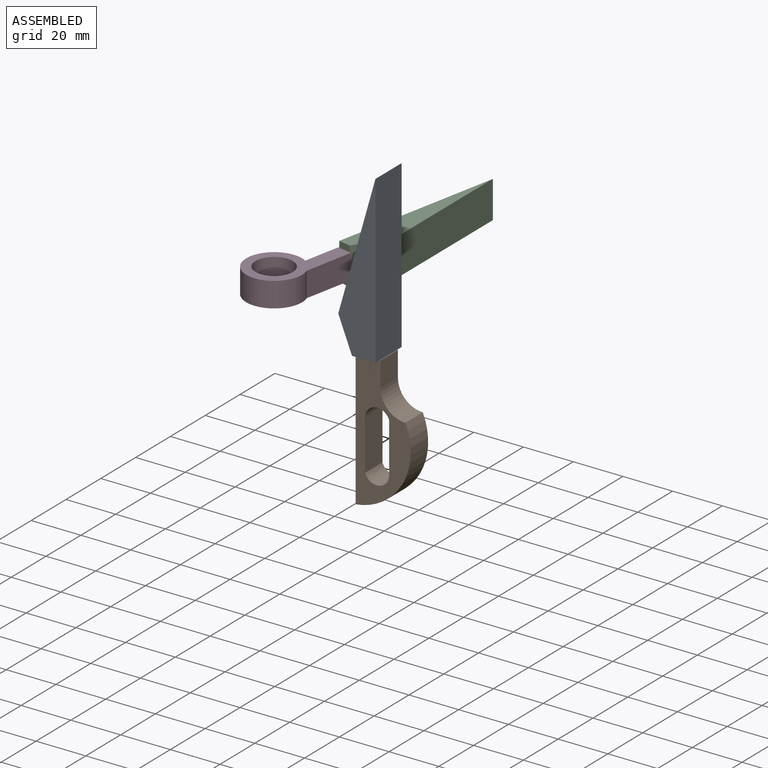
[diagram: assembled view]
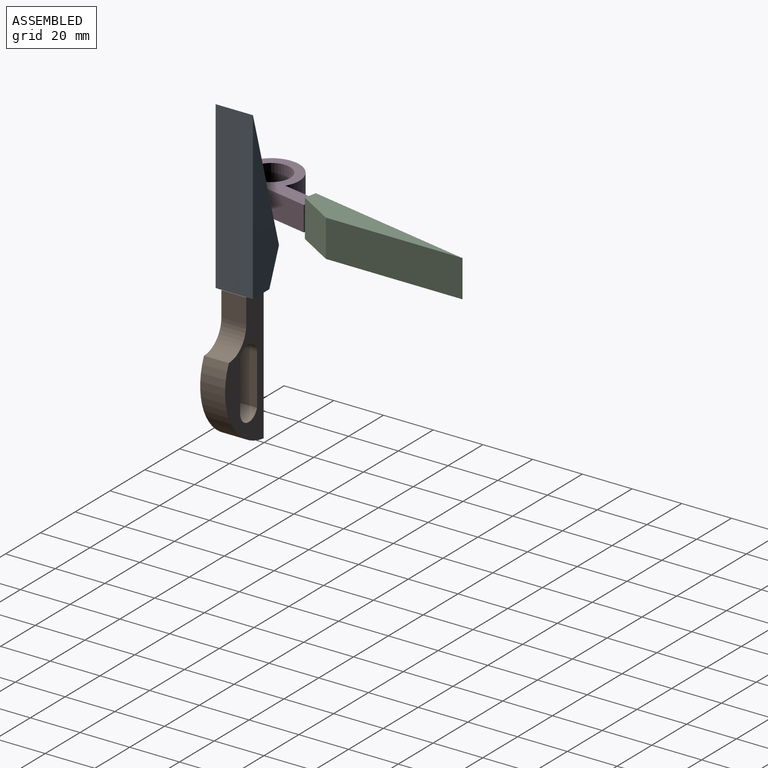
[diagram: assembled view, second angle]
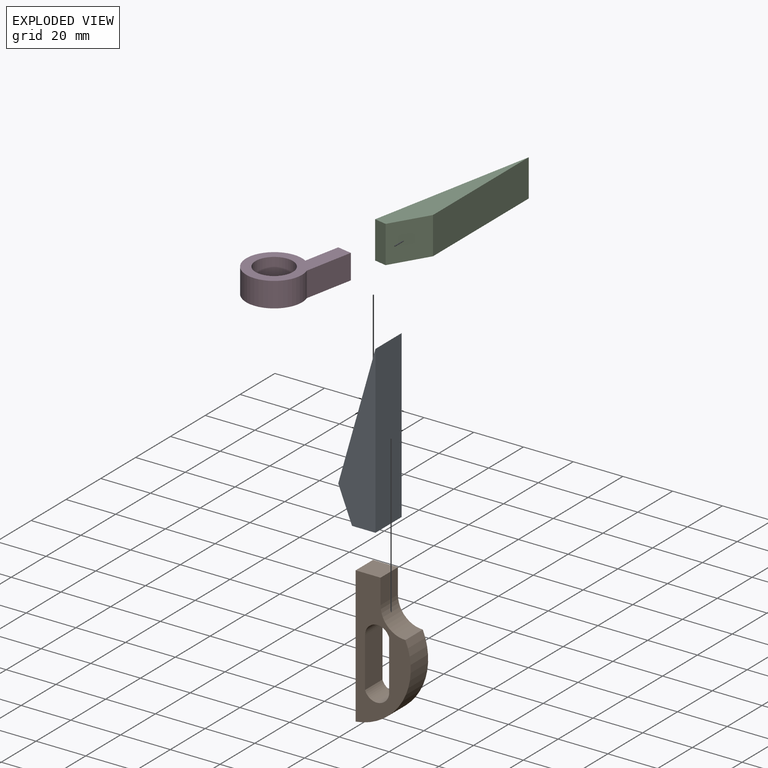
[diagram: exploded view]
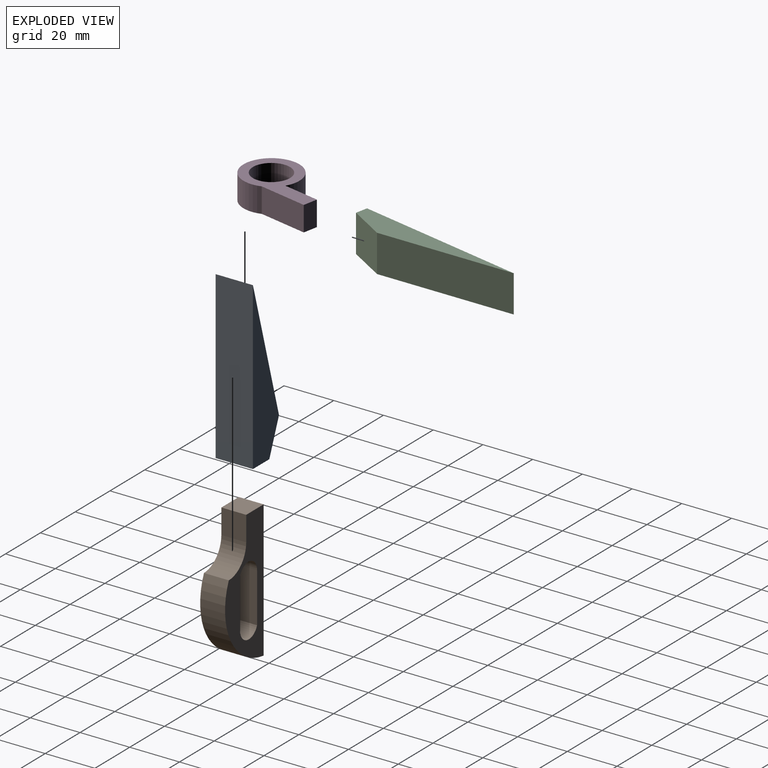
[diagram: exploded view, second angle]
ASSEMBLY  parts=4 mates=2
PART A: 6 faces, bbox 15x15x66.9 mm
  f0: plane 15x13.94mm, normal (-0.93,0,-0.37), area 225mm2, adj f1,f3,f4,f5
  f1: plane 15x9.43mm, normal (0,0,-1), area 141.4mm2, adj f0,f2,f4,f5
  f2: plane 66.86x15mm, normal (1,0,0), area 1002.9mm2, adj f1,f3,f4,f5
  f3: plane 52.92x15mm, normal (-0.96,0,0.27), area 825mm2, adj f0,f2,f4,f5
  f4: plane 66.86x14.97mm, normal (0,-1,0), area 566.2mm2, adj f0,f1,f2,f3
  f5: plane 66.86x14.97mm, normal (0,1,0), area 566.2mm2, adj f0,f1,f2,f3
PART B: 11 faces, bbox 22.2x10x55 mm
  f0: plane 55x22.16mm, normal (0,-1,0), area 603.6mm2, adj f2,f3,f4,f5,f6,f7,f8,f9
  f1: plane 55x22.16mm, normal (0,1,0), area 603.6mm2, adj f2,f3,f4,f5,f6,f7,f8,f9
  f2: plane 10x10mm, normal (0,0,1), area 100mm2, adj f0,f1,f3,f6
  f3: plane 55x10mm, normal (-1,0,0), area 550mm2, adj f0,f1,f2,f4
  f4: cylinder r=25mm len=35mm, axis (0,1,0), area 468.9mm2, adj f0,f1,f3,f5
  f5: cylinder r=10mm len=10mm, axis (0,1,0), area 157.1mm2, adj f0,f1,f4,f6
  f6: plane 10x10mm, normal (1,0,0), area 100mm2, adj f0,f1,f2,f5
  f7: plane 20x10mm, normal (-1,0,0), area 200mm2, adj f0,f1,f8,f10
  f8: cylinder r=5mm len=10mm, axis (0,-1,0), area 140mm2, adj f0,f1,f7,f9
  f9: plane 20x10mm, normal (1,0,0), area 200mm2, adj f0,f1,f8,f10
  f10: cylinder r=5mm len=10mm, axis (0,-1,0), area 140mm2, adj f0,f1,f7,f9
PART C: 6 faces, bbox 10.8x15x70 mm
  f0: plane 15x5mm, normal (0,0,-1), area 75mm2, adj f1,f3,f4,f5
  f1: plane 16.07x15mm, normal (0.94,0,-0.34), area 256.1mm2, adj f0,f2,f4,f5
  f2: plane 53.93x15mm, normal (0.98,0,0.2), area 825mm2, adj f1,f3,f4,f5
  f3: plane 70x15mm, normal (-1,0,0), area 1050mm2, adj f0,f2,f4,f5
  f4: plane 70x10.78mm, normal (0,-1,0), area 417.5mm2, adj f0,f1,f2,f3
  f5: plane 70x10.78mm, normal (0,1,0), area 417.5mm2, adj f0,f1,f2,f3
PART D: 7 faces, bbox 22.5x10x36.9 mm
  f0: plane 10x6mm, normal (0,0,1), area 60mm2, adj f1,f3,f4,f5
  f1: plane 15x10mm, normal (-1,0,0), area 150mm2, adj f0,f2,f4,f5
  f2: cylinder r=11.25mm len=22.5mm, axis (0,1,0), area 627.1mm2, adj f1,f3,f4,f5
  f3: plane 20x10mm, normal (1,0,0), area 200mm2, adj f0,f2,f4,f5
  f4: plane 36.86x22.5mm, normal (0,-1,0), area 322.2mm2, adj f0,f1,f2,f3,f6
  f5: plane 36.86x22.5mm, normal (0,1,0), area 322.2mm2, adj f0,f1,f2,f3,f6
  f6: cylinder r=7.5mm len=15mm, axis (0,-1,0), area 471.2mm2, adj f4,f5
PLACE A t=(-59,0.86,-5.21)mm
PLACE B t=(-59.28,-1.64,-5.21)mm
PLACE C rot(axis=(-0.99,0.1,-0.1),90.6deg) t=(-73.36,5.07,8.72)mm
PLACE D rot(axis=(-0.99,0.1,-0.1),90.6deg) t=(-75.81,5.56,11.22)mm
MATE fastened A.f1 <-> B.f2  axis (0,0,-1) through (-54.28,-6.64,-5.21)mm
MATE fastened D.f0 <-> C.f0  axis (0.2,0.98,0) through (-75.81,5.56,16.22)mm
